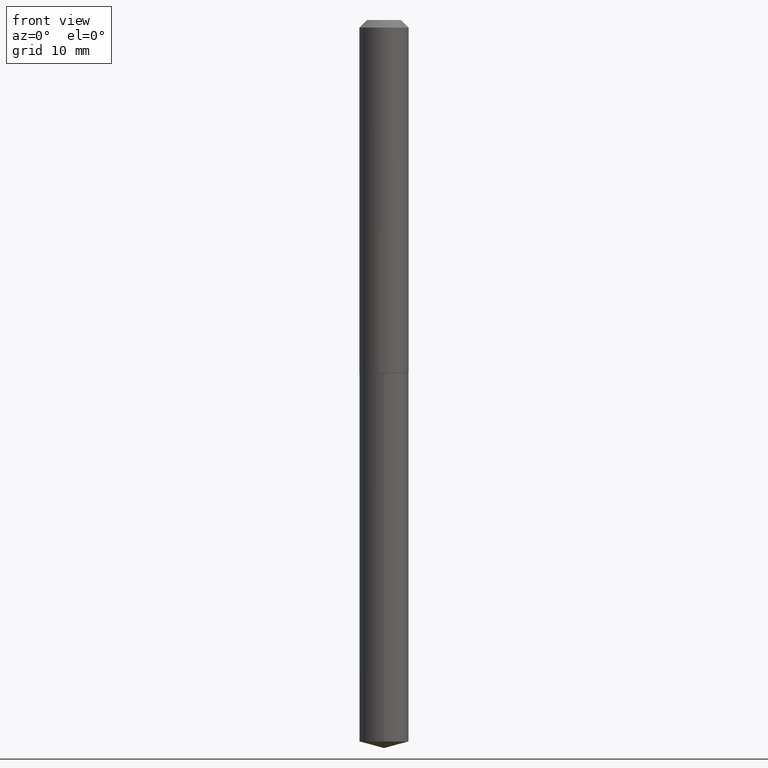
[diagram: clean part render]
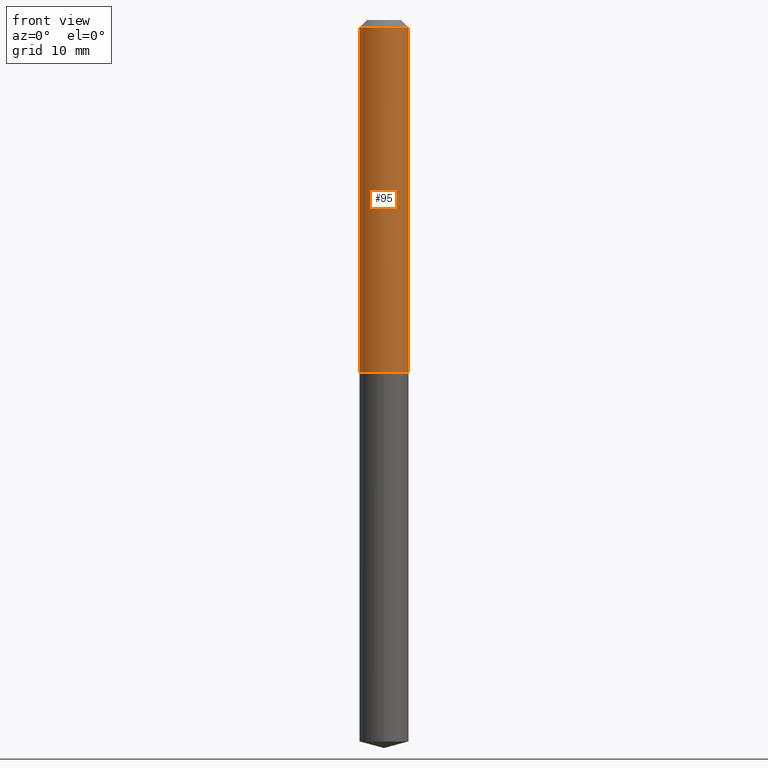
[diagram: same view with one face highlighted and labeled with its STEP entity id]
A machine part, front view. The second image highlights one B-rep face of the part: STEP entity #95.
In plain terms, the highlighted cylindrical surface (edge-blend (fillet) strip) has radius 2.5794 mm, axis along (-0, 0, 1).
Its self-contained STEP definition (entity closure, byte-faithful):
#21 = ORIENTED_EDGE ( 'NONE', *, *, #170, .F. ) ;
#23 = FACE_OUTER_BOUND ( 'NONE', #345, .T. ) ;
#24 = EDGE_CURVE ( 'NONE', #34, #196, #38, .T. ) ;
#26 = AXIS2_PLACEMENT_3D ( 'NONE', #292, #46, #316 ) ;
#34 = VERTEX_POINT ( 'NONE', #351 ) ;
#38 = CIRCLE ( 'NONE', #26, 0.1015500000000000014 ) ;
#46 = DIRECTION ( 'NONE',  ( -2.445468806185136597E-29, 3.491481338843145583E-15, 1.000000000000000000 ) ) ;
#52 = CARTESIAN_POINT ( 'NONE',  ( 0.1015500000000000985, -7.091198599190409793E-16, 4.951757515820777276E-30 ) ) ;
#85 = CIRCLE ( 'NONE', #132, 0.1015500000000001818 ) ;
#86 = CARTESIAN_POINT ( 'NONE',  ( 3.552287987864530521E-29, -5.071725792803555694E-15, -1.452600000000000557 ) ) ;
#89 = CARTESIAN_POINT ( 'NONE',  ( 0.1015500000000000014, -8.182286517578893896E-16, -0.03125000000000019429 ) ) ;
#95 = ADVANCED_FACE ( 'NONE', ( #23 ), #150, .T. ) ;
#132 = AXIS2_PLACEMENT_3D ( 'NONE', #86, #188, #305 ) ;
#133 = EDGE_CURVE ( 'NONE', #237, #196, #207, .T. ) ;
#137 = AXIS2_PLACEMENT_3D ( 'NONE', #272, #314, #389 ) ;
#150 = CYLINDRICAL_SURFACE ( 'NONE', #137, 0.1015500000000000985 ) ;
#170 = EDGE_CURVE ( 'NONE', #319, #34, #359, .T. ) ;
#181 = ORIENTED_EDGE ( 'NONE', *, *, #24, .F. ) ;
#182 = DIRECTION ( 'NONE',  ( -2.445468806185136877E-29, 3.491481338843145188E-15, 1.000000000000000000 ) ) ;
#188 = DIRECTION ( 'NONE',  ( -2.445468806185136597E-29, 3.491481338843145583E-15, 1.000000000000000000 ) ) ;
#192 = ORIENTED_EDGE ( 'NONE', *, *, #261, .T. ) ;
#195 = ORIENTED_EDGE ( 'NONE', *, *, #133, .T. ) ;
#196 = VERTEX_POINT ( 'NONE', #89 ) ;
#207 = LINE ( 'NONE', #52, #289 ) ;
#217 = CARTESIAN_POINT ( 'NONE',  ( -0.1015500000000000985, 7.215561481643824388E-16, -4.995178584153862006E-30 ) ) ;
#237 = VERTEX_POINT ( 'NONE', #328 ) ;
#254 = VECTOR ( 'NONE', #182, 39.37007874015748143 ) ;
#261 = EDGE_CURVE ( 'NONE', #319, #237, #85, .T. ) ;
#272 = CARTESIAN_POINT ( 'NONE',  ( 0.000000000000000000, 0.000000000000000000, 0.000000000000000000 ) ) ;
#289 = VECTOR ( 'NONE', #318, 39.37007874015748143 ) ;
#292 = CARTESIAN_POINT ( 'NONE',  ( 7.642090019328598283E-31, -1.091087918388489651E-16, -0.03125000000000019429 ) ) ;
#305 = DIRECTION ( 'NONE',  ( 1.000000000000000000, -6.982962677686270655E-15, 0.000000000000000000 ) ) ;
#314 = DIRECTION ( 'NONE',  ( -2.445468806185136597E-29, 3.491481338843145583E-15, 1.000000000000000000 ) ) ;
#316 = DIRECTION ( 'NONE',  ( 1.000000000000000000, -6.982962677686266711E-15, 0.000000000000000000 ) ) ;
#318 = DIRECTION ( 'NONE',  ( -2.445468806185136877E-29, 3.491481338843145188E-15, 1.000000000000000000 ) ) ;
#319 = VERTEX_POINT ( 'NONE', #337 ) ;
#328 = CARTESIAN_POINT ( 'NONE',  ( 0.1015500000000001818, -5.780845652722597265E-15, -1.452600000000000557 ) ) ;
#337 = CARTESIAN_POINT ( 'NONE',  ( -0.1015500000000001818, -4.350169644639172171E-15, -1.452600000000000557 ) ) ;
#345 = EDGE_LOOP ( 'NONE', ( #21, #192, #195, #181 ) ) ;
#351 = CARTESIAN_POINT ( 'NONE',  ( -0.1015500000000000014, -1.868861144156819268E-15, -0.03125000000000019429 ) ) ;
#359 = LINE ( 'NONE', #217, #254 ) ;
#389 = DIRECTION ( 'NONE',  ( 1.000000000000000000, -6.982962677686265922E-15, 4.876176775795935232E-29 ) ) ;